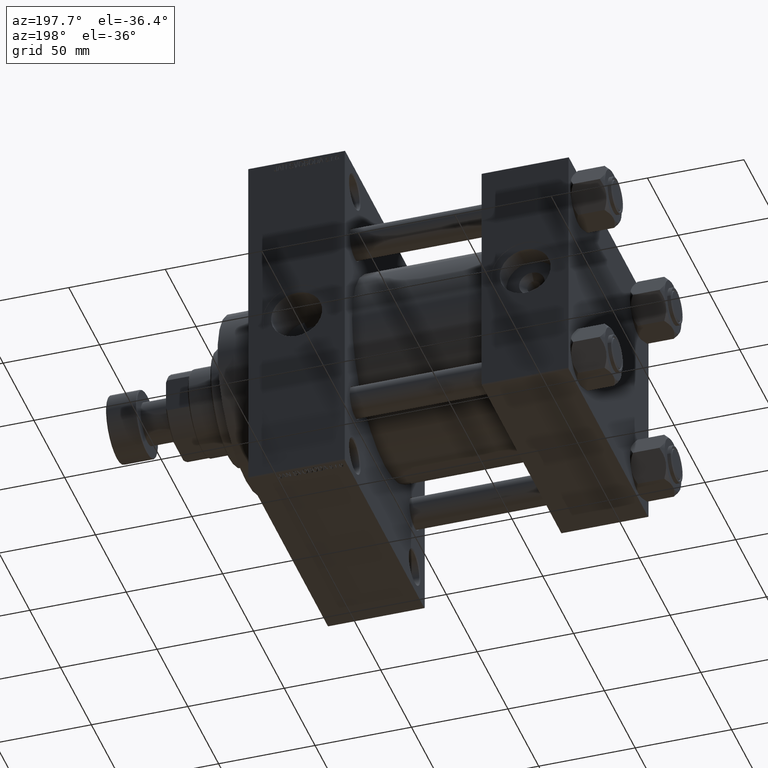
[diagram: clean part render]
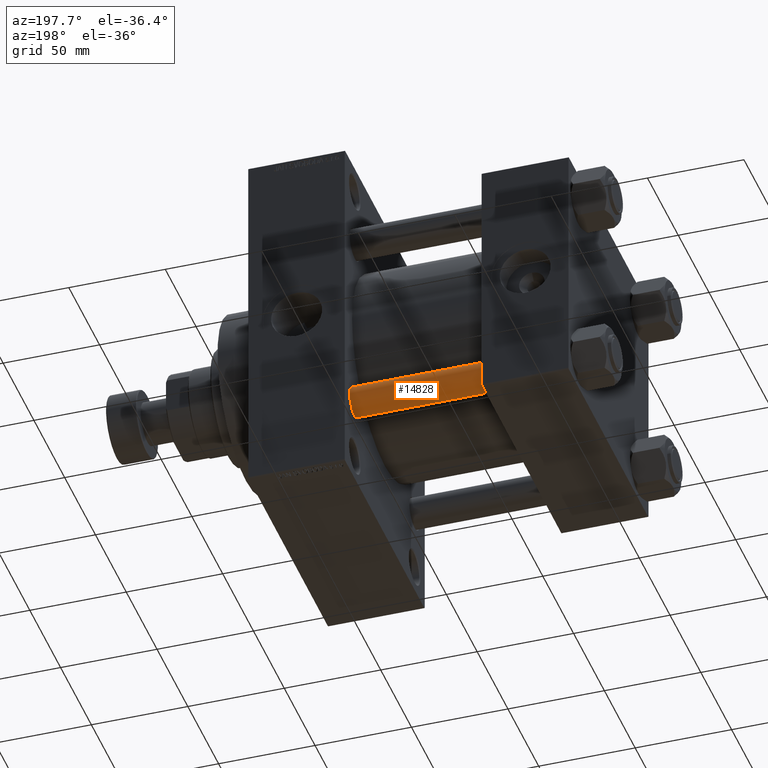
[diagram: same view with one face highlighted and labeled with its STEP entity id]
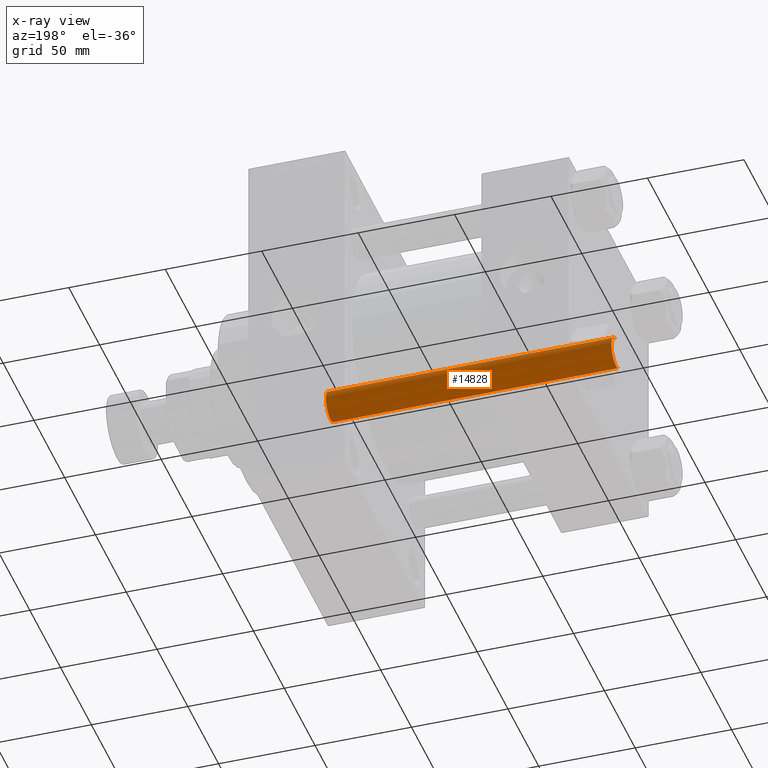
[diagram: x-ray of the same camera — body ghosted, the highlighted face saturated]
A machine part, auxiliary view. The second image highlights one B-rep face of the part: STEP entity #14828.
The next image is the same camera in x-ray: the body ghosted, the highlighted face saturated — about 0% of this face is hidden behind the body in this view.
In plain terms, the highlighted cylindrical surface (edge-blend (fillet) strip) has radius 8 mm, axis along (1, -0, 0).
Its self-contained STEP definition (entity closure, byte-faithful):
#907 = EDGE_LOOP ( 'NONE', ( #47655, #7861, #40166, #11074 ) ) ;
#1548 = CARTESIAN_POINT ( 'NONE',  ( -8.000000000000000000, 0.000000000000000000, 148.5000000000000000 ) ) ;
#4388 = AXIS2_PLACEMENT_3D ( 'NONE', #7302, #34250, #34504 ) ;
#5622 = CARTESIAN_POINT ( 'NONE',  ( 8.000000000000000000, 9.797174393178825657E-16, 149.0000000000000000 ) ) ;
#6867 = CARTESIAN_POINT ( 'NONE',  ( 0.000000000000000000, 0.000000000000000000, 148.5000000000000000 ) ) ;
#7302 = CARTESIAN_POINT ( 'NONE',  ( 0.000000000000000000, 0.000000000000000000, 0.5000000000000281997 ) ) ;
#7861 = ORIENTED_EDGE ( 'NONE', *, *, #49033, .T. ) ;
#8787 = CARTESIAN_POINT ( 'NONE',  ( -8.000000000000000000, 0.000000000000000000, 149.0000000000000000 ) ) ;
#9673 = DIRECTION ( 'NONE',  ( -0.000000000000000000, -0.000000000000000000, -1.000000000000000000 ) ) ;
#11074 = ORIENTED_EDGE ( 'NONE', *, *, #13507, .F. ) ;
#13507 = EDGE_CURVE ( 'NONE', #19508, #32332, #21505, .T. ) ;
#13714 = AXIS2_PLACEMENT_3D ( 'NONE', #21637, #9673, #33324 ) ;
#14828 = ADVANCED_FACE ( 'NONE', ( #41178 ), #48568, .T. ) ;
#14864 = EDGE_CURVE ( 'NONE', #19508, #44012, #26704, .T. ) ;
#15106 = CARTESIAN_POINT ( 'NONE',  ( -8.000000000000000000, 0.000000000000000000, 0.5000000000000281997 ) ) ;
#19508 = VERTEX_POINT ( 'NONE', #1548 ) ;
#20216 = AXIS2_PLACEMENT_3D ( 'NONE', #6867, #25941, #49063 ) ;
#21505 = LINE ( 'NONE', #8787, #32333 ) ;
#21637 = CARTESIAN_POINT ( 'NONE',  ( 0.000000000000000000, 0.000000000000000000, 149.0000000000000000 ) ) ;
#23013 = VERTEX_POINT ( 'NONE', #33860 ) ;
#25941 = DIRECTION ( 'NONE',  ( 0.000000000000000000, 0.000000000000000000, -1.000000000000000000 ) ) ;
#26288 = CIRCLE ( 'NONE', #4388, 8.000000000000000000 ) ;
#26704 = CIRCLE ( 'NONE', #20216, 8.000000000000000000 ) ;
#27917 = CARTESIAN_POINT ( 'NONE',  ( 8.000000000000000000, 9.797174393178825657E-16, 148.5000000000000000 ) ) ;
#32163 = EDGE_CURVE ( 'NONE', #23013, #32332, #26288, .T. ) ;
#32332 = VERTEX_POINT ( 'NONE', #15106 ) ;
#32333 = VECTOR ( 'NONE', #36761, 1000.000000000000000 ) ;
#32810 = LINE ( 'NONE', #5622, #39599 ) ;
#33324 = DIRECTION ( 'NONE',  ( -1.000000000000000000, 0.000000000000000000, 0.000000000000000000 ) ) ;
#33860 = CARTESIAN_POINT ( 'NONE',  ( 8.000000000000000000, 9.797174393178825657E-16, 0.5000000000000281997 ) ) ;
#34250 = DIRECTION ( 'NONE',  ( -0.000000000000000000, -0.000000000000000000, 1.000000000000000000 ) ) ;
#34504 = DIRECTION ( 'NONE',  ( 1.000000000000000000, 0.000000000000000000, 0.000000000000000000 ) ) ;
#36382 = DIRECTION ( 'NONE',  ( -0.000000000000000000, -0.000000000000000000, -1.000000000000000000 ) ) ;
#36761 = DIRECTION ( 'NONE',  ( -0.000000000000000000, -0.000000000000000000, -1.000000000000000000 ) ) ;
#39599 = VECTOR ( 'NONE', #36382, 1000.000000000000000 ) ;
#40166 = ORIENTED_EDGE ( 'NONE', *, *, #32163, .T. ) ;
#41178 = FACE_OUTER_BOUND ( 'NONE', #907, .T. ) ;
#44012 = VERTEX_POINT ( 'NONE', #27917 ) ;
#47655 = ORIENTED_EDGE ( 'NONE', *, *, #14864, .T. ) ;
#48568 = CYLINDRICAL_SURFACE ( 'NONE', #13714, 8.000000000000000000 ) ;
#49033 = EDGE_CURVE ( 'NONE', #44012, #23013, #32810, .T. ) ;
#49063 = DIRECTION ( 'NONE',  ( 1.000000000000000000, 0.000000000000000000, 0.000000000000000000 ) ) ;